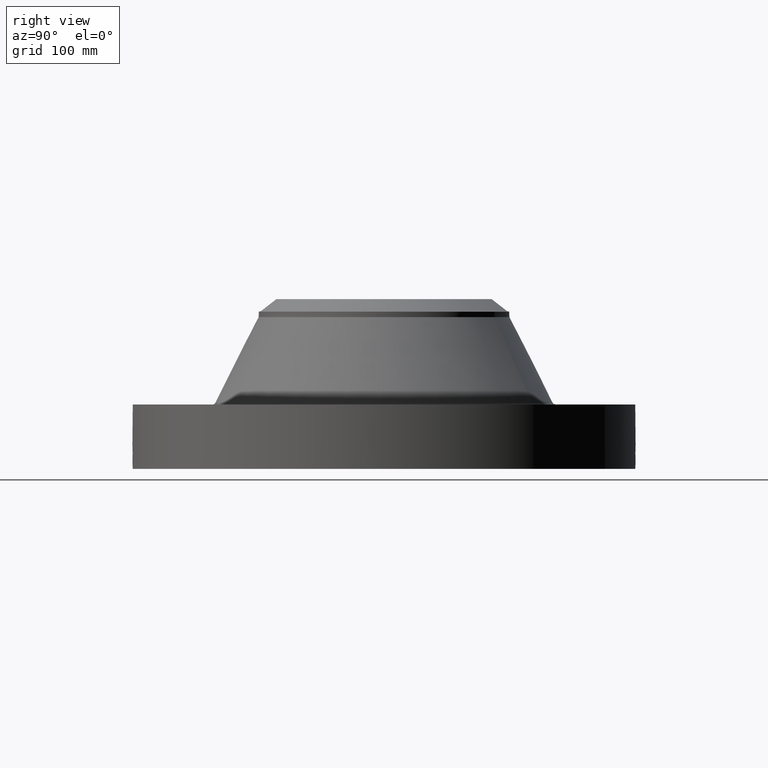
[diagram: clean part render]
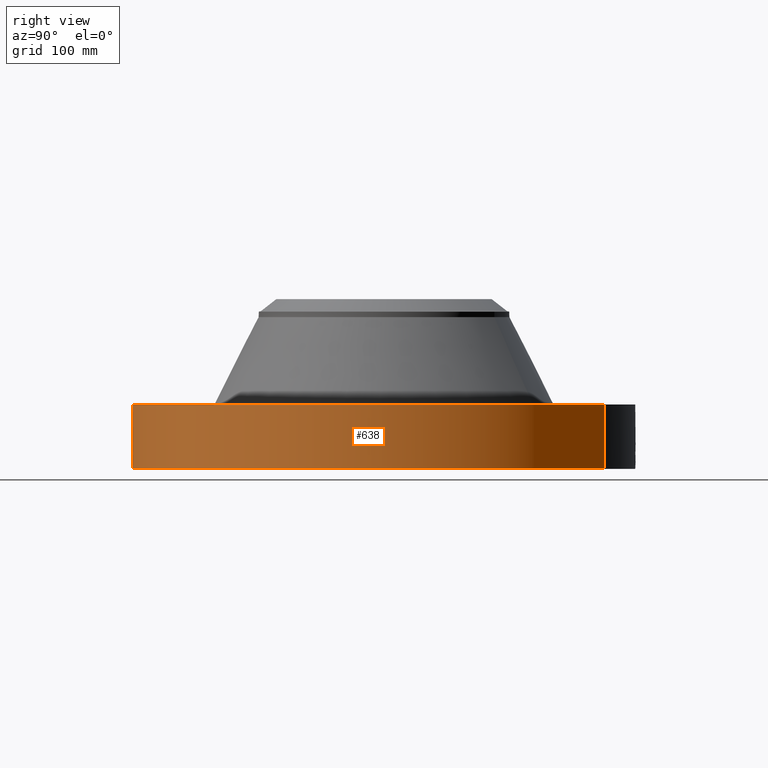
[diagram: same view with one face highlighted and labeled with its STEP entity id]
A machine part, right view. The second image highlights one B-rep face of the part: STEP entity #638.
In plain terms, the highlighted cylindrical surface (partial cylindrical patch) has radius 273.05 mm, axis along (0, 0, -1).
Its self-contained STEP definition (entity closure, byte-faithful):
#38=AXIS2_PLACEMENT_3D('Cylinder Axis2P3D',#35,#36,#37) ;
#169=AXIS2_PLACEMENT_3D('Circle Axis2P3D',#167,#168,$) ;
#542=AXIS2_PLACEMENT_3D('Circle Axis2P3D',#540,#541,$) ;
#35=CARTESIAN_POINT('Axis2P3D Location',(0.,0.,3.87500000002)) ;
#44=CARTESIAN_POINT('Vertex',(-5.15382454002,-9.43401254036,0.250000000001)) ;
#46=CARTESIAN_POINT('Vertex',(5.15382454002,9.43401254036,0.250000000001)) ;
#49=CARTESIAN_POINT('Line Origine',(-5.15382454002,-9.43401254036,1.62500000001)) ;
#53=CARTESIAN_POINT('Vertex',(-5.15382454002,-9.43401254036,3.00000000001)) ;
#60=CARTESIAN_POINT('Vertex',(5.15382454002,9.43401254036,3.00000000001)) ;
#63=CARTESIAN_POINT('Line Origine',(5.15382454002,9.43401254036,1.62500000001)) ;
#167=CARTESIAN_POINT('Axis2P3D Location',(0.,0.,0.250000000001)) ;
#540=CARTESIAN_POINT('Axis2P3D Location',(0.,0.,3.00000000001)) ;
#552=CARTESIAN_POINT('Control Point',(0.0567944166526,-10.7498499708,1.28953013562)) ;
#553=CARTESIAN_POINT('Control Point',(0.0382629924693,-10.7499478774,1.29254444993)) ;
#554=CARTESIAN_POINT('Control Point',(0.0194910704007,-10.7499987257,1.29408046659)) ;
#555=CARTESIAN_POINT('Control Point',(0.000716018885388,-10.7499999762,1.29411849942)) ;
#556=CARTESIAN_POINT('Vertex',(0.0567820543428,-10.7498502916,1.28953242631)) ;
#558=CARTESIAN_POINT('Vertex',(0.000715917338792,-10.7499999762,1.29411850989)) ;
#562=CARTESIAN_POINT('Control Point',(0.0567819585678,-10.7498500366,1.28953186744)) ;
#563=CARTESIAN_POINT('Control Point',(0.0966632575969,-10.749639379,1.28488521852)) ;
#564=CARTESIAN_POINT('Control Point',(0.13584275411,-10.7492020479,1.27297024646)) ;
#565=CARTESIAN_POINT('Control Point',(0.171864801758,-10.7486260746,1.25462752922)) ;
#566=CARTESIAN_POINT('Vertex',(0.171864801758,-10.7486260746,1.25462752922)) ;
#570=CARTESIAN_POINT('Control Point',(0.0305848860409,-10.7499564913,0.531157240761)) ;
#571=CARTESIAN_POINT('Control Point',(0.0995195039034,-10.7497603643,0.539904444064)) ;
#572=CARTESIAN_POINT('Control Point',(0.166100724836,-10.7490183702,0.564153538464)) ;
#573=CARTESIAN_POINT('Control Point',(0.225415790283,-10.7478174907,0.603028387315)) ;
#574=CARTESIAN_POINT('Control Point',(0.297416267898,-10.7459654534,0.677044287799)) ;
#575=CARTESIAN_POINT('Control Point',(0.341890627329,-10.7445741109,0.767030529075)) ;
#576=CARTESIAN_POINT('Control Point',(0.353305818103,-10.7441977764,0.797759290557)) ;
#577=CARTESIAN_POINT('Control Point',(0.371781668132,-10.7435740431,0.869149711335)) ;
#578=CARTESIAN_POINT('Control Point',(0.373464773131,-10.7435087124,0.942550395069)) ;
#579=CARTESIAN_POINT('Control Point',(0.369105068107,-10.7436639568,0.983246291645)) ;
#580=CARTESIAN_POINT('Control Point',(0.346835581151,-10.7444360489,1.07538191986)) ;
#581=CARTESIAN_POINT('Control Point',(0.297852180993,-10.7459335321,1.15663707888)) ;
#582=CARTESIAN_POINT('Control Point',(0.261839366929,-10.7469281327,1.19745841985)) ;
#583=CARTESIAN_POINT('Control Point',(0.219078097969,-10.7478711591,1.23058613572)) ;
#584=CARTESIAN_POINT('Control Point',(0.171864801758,-10.7486260746,1.25462752922)) ;
#585=CARTESIAN_POINT('Vertex',(0.0305848860409,-10.7499564913,0.531157240761)) ;
#589=CARTESIAN_POINT('Control Point',(0.0305848860409,-10.7499564913,0.531157240761)) ;
#590=CARTESIAN_POINT('Control Point',(0.0203844796572,-10.7499855127,0.530869974424)) ;
#591=CARTESIAN_POINT('Control Point',(0.0101779958864,-10.7500000026,0.530942614676)) ;
#592=CARTESIAN_POINT('Control Point',(-2.72878353563E-006,-10.75,0.531374667805)) ;
#593=CARTESIAN_POINT('Vertex',(-2.72878354086E-006,-10.75,0.531374667805)) ;
#597=CARTESIAN_POINT('Control Point',(-0.192994359745,-10.7482674501,0.586736654107)) ;
#598=CARTESIAN_POINT('Control Point',(-0.149148195136,-10.7490547455,0.5616438758)) ;
#599=CARTESIAN_POINT('Control Point',(-0.101145673126,-10.7496790041,0.543642463379)) ;
#600=CARTESIAN_POINT('Control Point',(-0.0508155936057,-10.7499999871,0.533531079885)) ;
#601=CARTESIAN_POINT('Control Point',(-2.72878353563E-006,-10.75,0.531374667805)) ;
#602=CARTESIAN_POINT('Vertex',(-0.192994359745,-10.7482674501,0.586736654107)) ;
#606=CARTESIAN_POINT('Control Point',(-0.192994359745,-10.7482674501,0.586736654107)) ;
#607=CARTESIAN_POINT('Control Point',(-0.221848470826,-10.7477493498,0.603249610093)) ;
#608=CARTESIAN_POINT('Control Point',(-0.249019842412,-10.7471646084,0.622640986795)) ;
#609=CARTESIAN_POINT('Control Point',(-0.274104091718,-10.7465429546,0.644726392755)) ;
#610=CARTESIAN_POINT('Control Point',(-0.340614404741,-10.744718104,0.716853877837)) ;
#611=CARTESIAN_POINT('Control Point',(-0.382738131547,-10.7432168297,0.806816471672)) ;
#612=CARTESIAN_POINT('Control Point',(-0.397428599454,-10.7426387562,0.871363686279)) ;
#613=CARTESIAN_POINT('Control Point',(-0.397846527335,-10.7426626095,0.998339861491)) ;
#614=CARTESIAN_POINT('Control Point',(-0.348008168886,-10.7444099638,1.11340321311)) ;
#615=CARTESIAN_POINT('Control Point',(-0.312903341054,-10.7455631406,1.16309909199)) ;
#616=CARTESIAN_POINT('Control Point',(-0.234583507355,-10.7476755014,1.23721939629)) ;
#617=CARTESIAN_POINT('Control Point',(-0.137662065598,-10.7492549656,1.27962320963)) ;
#618=CARTESIAN_POINT('Control Point',(-0.0921850417995,-10.749755908,1.29158731264)) ;
#619=CARTESIAN_POINT('Control Point',(-0.045811885441,-10.7500001103,1.29640029841)) ;
#620=CARTESIAN_POINT('Control Point',(2.58579355341E-005,-10.75,1.29415298431)) ;
#621=CARTESIAN_POINT('Vertex',(2.58579355399E-005,-10.75,1.29415298431)) ;
#625=CARTESIAN_POINT('Control Point',(0.000715917328898,-10.7499999762,1.29411850987)) ;
#626=CARTESIAN_POINT('Control Point',(0.000370911873319,-10.7499999992,1.29413606715)) ;
#627=CARTESIAN_POINT('Control Point',(2.585794096E-005,-10.75,1.29415298431)) ;
#36=DIRECTION('Axis2P3D Direction',(0.,0.,-0.0393700787402)) ;
#37=DIRECTION('Axis2P3D XDirection',(0.0188750212049,0.0345504945626,0.)) ;
#50=DIRECTION('Vector Direction',(0.,0.,-0.0393700787402)) ;
#64=DIRECTION('Vector Direction',(0.,0.,-0.0393700787402)) ;
#168=DIRECTION('Axis2P3D Direction',(0.,0.,-0.0393700787402)) ;
#541=DIRECTION('Axis2P3D Direction',(0.,0.,-0.0393700787402)) ;
#51=VECTOR('Line Direction',#50,0.0393700787402) ;
#65=VECTOR('Line Direction',#64,0.0393700787402) ;
#546=ORIENTED_EDGE('',*,*,#171,.F.) ;
#547=ORIENTED_EDGE('',*,*,#67,.T.) ;
#548=ORIENTED_EDGE('',*,*,#544,.T.) ;
#549=ORIENTED_EDGE('',*,*,#55,.F.) ;
#630=ORIENTED_EDGE('',*,*,#560,.F.) ;
#631=ORIENTED_EDGE('',*,*,#568,.T.) ;
#632=ORIENTED_EDGE('',*,*,#587,.F.) ;
#633=ORIENTED_EDGE('',*,*,#595,.T.) ;
#634=ORIENTED_EDGE('',*,*,#604,.F.) ;
#635=ORIENTED_EDGE('',*,*,#623,.T.) ;
#636=ORIENTED_EDGE('',*,*,#628,.F.) ;
#637=FACE_BOUND('',#629,.T.) ;
#638=ADVANCED_FACE('PartBody',(#550,#637),#39,.T.) ;
#551=B_SPLINE_CURVE_WITH_KNOTS('',3,(#552,#553,#554,#555),.UNSPECIFIED.,.F.,.U.,(4,4),(4.43834912266,6.52127021109),.UNSPECIFIED.) ;
#561=B_SPLINE_CURVE_WITH_KNOTS('',3,(#562,#563,#564,#565),.UNSPECIFIED.,.F.,.U.,(4,4),(0.,4.51145082185),.UNSPECIFIED.) ;
#569=B_SPLINE_CURVE_WITH_KNOTS('',5,(#570,#571,#572,#573,#574,#575,#576,#577,#578,#579,#580,#581,#582,#583,#584),.UNSPECIFIED.,.F.,.U.,(6,3,3,3,6),(0.,12.0763342086,17.9495287814,25.3608838128,35.2159809915),.UNSPECIFIED.) ;
#588=B_SPLINE_CURVE_WITH_KNOTS('',3,(#589,#590,#591,#592),.UNSPECIFIED.,.F.,.U.,(4,4),(0.,1.06400479433),.UNSPECIFIED.) ;
#596=B_SPLINE_CURVE_WITH_KNOTS('',4,(#597,#598,#599,#600,#601),.UNSPECIFIED.,.F.,.U.,(5,5),(0.,7.08071817572),.UNSPECIFIED.) ;
#605=B_SPLINE_CURVE_WITH_KNOTS('',5,(#606,#607,#608,#609,#610,#611,#612,#613,#614,#615,#616,#617,#618,#619,#620),.UNSPECIFIED.,.F.,.U.,(6,3,3,3,6),(0.,5.8245638104,17.1408282975,27.8149222079,36.382947348),.UNSPECIFIED.) ;
#624=B_SPLINE_CURVE_WITH_KNOTS('',2,(#625,#626,#627),.UNSPECIFIED.,.F.,.U.,(3,3),(1.03536001126,1.06115910772),.UNSPECIFIED.) ;
#170=CIRCLE('generated circle',#169,10.75) ;
#543=CIRCLE('generated circle',#542,10.75) ;
#39=CYLINDRICAL_SURFACE('generated cylinder',#38,10.75) ;
#55=EDGE_CURVE('',#45,#54,#52,.F.) ;
#67=EDGE_CURVE('',#47,#61,#66,.F.) ;
#171=EDGE_CURVE('',#47,#45,#170,.T.) ;
#544=EDGE_CURVE('',#61,#54,#543,.T.) ;
#560=EDGE_CURVE('',#557,#559,#551,.T.) ;
#568=EDGE_CURVE('',#557,#567,#561,.T.) ;
#587=EDGE_CURVE('',#586,#567,#569,.T.) ;
#595=EDGE_CURVE('',#586,#594,#588,.T.) ;
#604=EDGE_CURVE('',#603,#594,#596,.T.) ;
#623=EDGE_CURVE('',#603,#622,#605,.T.) ;
#628=EDGE_CURVE('',#559,#622,#624,.T.) ;
#545=EDGE_LOOP('',(#546,#547,#548,#549)) ;
#629=EDGE_LOOP('',(#630,#631,#632,#633,#634,#635,#636)) ;
#550=FACE_OUTER_BOUND('',#545,.T.) ;
#52=LINE('Line',#49,#51) ;
#66=LINE('Line',#63,#65) ;
#45=VERTEX_POINT('',#44) ;
#47=VERTEX_POINT('',#46) ;
#54=VERTEX_POINT('',#53) ;
#61=VERTEX_POINT('',#60) ;
#557=VERTEX_POINT('',#556) ;
#559=VERTEX_POINT('',#558) ;
#567=VERTEX_POINT('',#566) ;
#586=VERTEX_POINT('',#585) ;
#594=VERTEX_POINT('',#593) ;
#603=VERTEX_POINT('',#602) ;
#622=VERTEX_POINT('',#621) ;